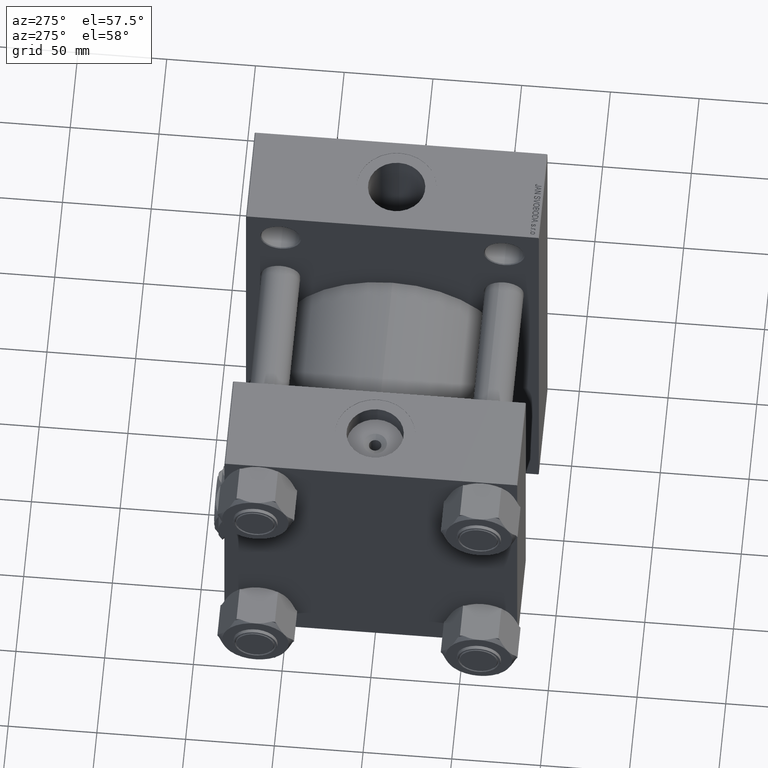
[diagram: clean part render]
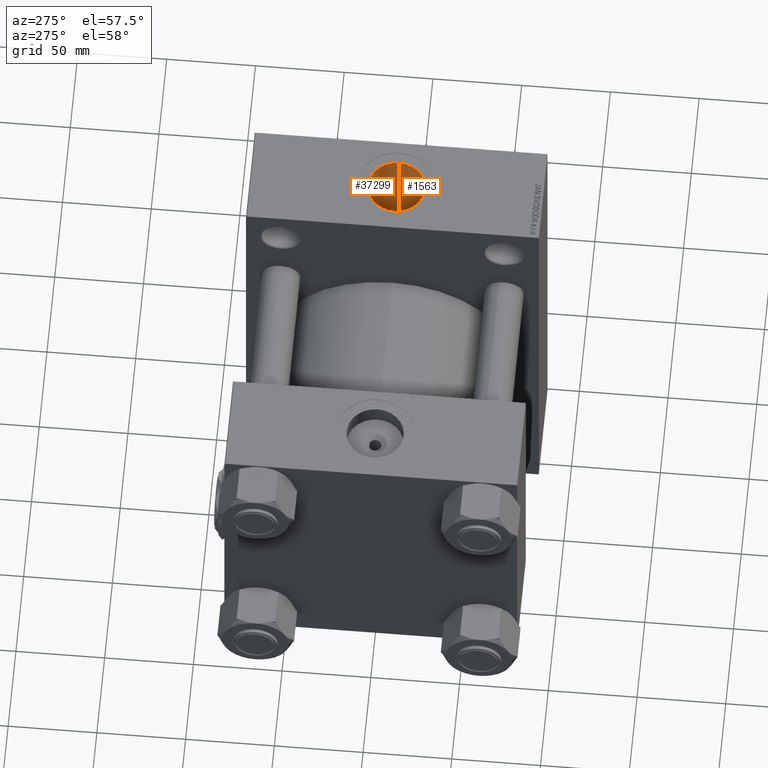
[diagram: same view with one multi-face feature highlighted, each face labeled with its STEP entity id]
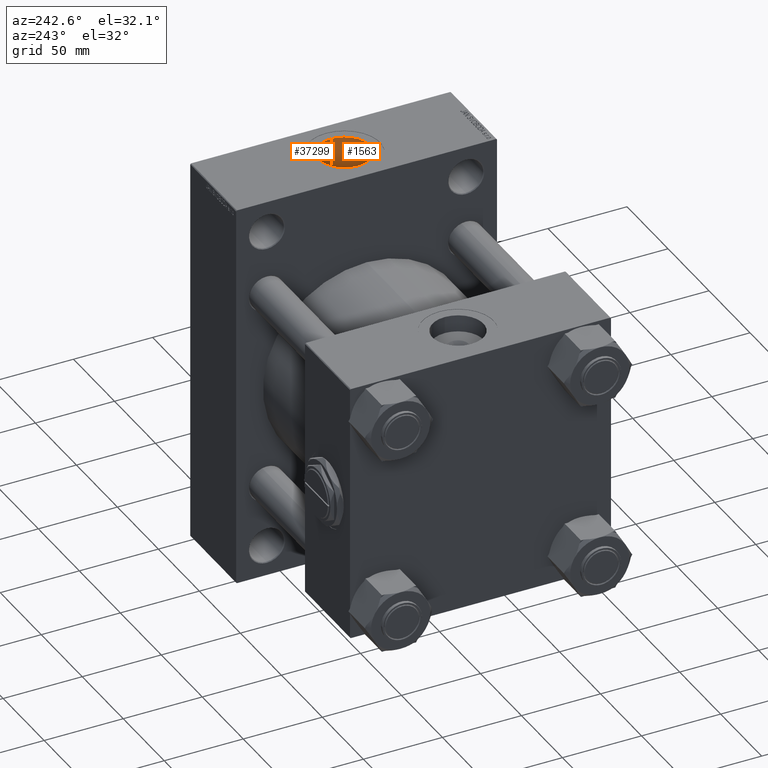
[diagram: same view with one multi-face feature highlighted, each face labeled with its STEP entity id]
A machine part, auxiliary view. The highlighted faces form ONE feature: a constant-radius fillet chain: 2 tangent blend faces with common blend radius 16.12 mm. The faces share edges in the B-rep.
A second angle (auxiliary view) of the same feature is appended — it is thin or edge-on in the first view.
Their STEP definitions:
[1] entity #1563 (Cylinder):
#761 = EDGE_LOOP ( 'NONE', ( #29868, #43348, #39371, #3784, #31301, #19017 ) ) ;
#1563 = ADVANCED_FACE ( 'NONE', ( #13410 ), #2426, .F. ) ;
#2329 = CARTESIAN_POINT ( 'NONE',  ( 150.3349467463776250, -3.818578580884662177, 47.84905752641297028 ) ) ;
#2426 = CYLINDRICAL_SURFACE ( 'NONE', #10664, 16.11999999999999389 ) ;
#2455 = CARTESIAN_POINT ( 'NONE',  ( 182.1200000000000614, 1.233548639465218517E-14, 62.75000000000001421 ) ) ;
#2706 = CARTESIAN_POINT ( 'NONE',  ( 176.6931090995301190, -12.08387147005236706, 61.57756697528341050 ) ) ;
#2712 = VERTEX_POINT ( 'NONE', #26956 ) ;
#3342 = EDGE_CURVE ( 'NONE', #42902, #31832, #7388, .T. ) ;
#3784 = ORIENTED_EDGE ( 'NONE', *, *, #12397, .F. ) ;
#3836 = VERTEX_POINT ( 'NONE', #26114 ) ;
#6325 = CARTESIAN_POINT ( 'NONE',  ( 152.6971890334757518, -9.210764258183600006, 47.12401255044404991 ) ) ;
#6421 = DIRECTION ( 'NONE',  ( 0.000000000000000000, 0.000000000000000000, -1.000000000000000000 ) ) ;
#6701 = CARTESIAN_POINT ( 'NONE',  ( 174.3751098904970149, -13.79261230007028161, 61.21644931185165461 ) ) ;
#6823 = CARTESIAN_POINT ( 'NONE',  ( 153.5284591875429214, -10.30646944873276638, 46.89142198111669302 ) ) ;
#7388 = B_SPLINE_CURVE_WITH_KNOTS ( 'NONE', 3,
 ( #2455, #48254, #25484, #40252, #37222, #40733, #25247, #13440, #36485, #36964, #13693, #2706, #17465, #17961, #6701, #18201 ),
 .UNSPECIFIED., .F., .F.,
 ( 4, 2, 2, 2, 2, 2, 2, 4 ),
 ( 0.01725131248101617956, 0.02156005667283688448, 0.02371442876874723521, 0.02586880086465758941, 0.02802317296056794360, 0.03017754505647830127, 0.03233191715238865893, 0.03448628924829900966 ),
 .UNSPECIFIED. ) ;
#8806 = CARTESIAN_POINT ( 'NONE',  ( 172.5268965211029695, -14.80427523608108231, 45.66526315275407910 ) ) ;
#9821 = CARTESIAN_POINT ( 'NONE',  ( 164.3089344729780805, -16.04636164410583987, 45.23854938111714574 ) ) ;
#10556 = CARTESIAN_POINT ( 'NONE',  ( 150.0618984349625578, -2.440288002312380744, 47.93919931072274920 ) ) ;
#10664 = AXIS2_PLACEMENT_3D ( 'NONE', #36937, #6421, #18411 ) ;
#12397 = EDGE_CURVE ( 'NONE', #49374, #31832, #36296, .T. ) ;
#12456 = VERTEX_POINT ( 'NONE', #25302 ) ;
#13054 = CARTESIAN_POINT ( 'NONE',  ( 160.2496555027516081, -15.07580435985670242, 45.57198320915298950 ) ) ;
#13410 = FACE_OUTER_BOUND ( 'NONE', #761, .T. ) ;
#13440 = CARTESIAN_POINT ( 'NONE',  ( 179.4978733992990954, -8.841743442041519074, 62.12707439263353137 ) ) ;
#13693 = CARTESIAN_POINT ( 'NONE',  ( 177.7179939142464491, -11.09284231136825660, 61.76378836952420670 ) ) ;
#14059 = CARTESIAN_POINT ( 'NONE',  ( 154.9799852017249862, -11.78519132341143738, 46.53349822920894496 ) ) ;
#14792 = CARTESIAN_POINT ( 'NONE',  ( 173.7400000000000091, -14.14025459459623590, 61.13604256083313260 ) ) ;
#16823 = CARTESIAN_POINT ( 'NONE',  ( 160.9058140718719585, -15.30969356532286341, 45.49344936859772304 ) ) ;
#17465 = CARTESIAN_POINT ( 'NONE',  ( 176.1469099290165161, -12.54658168107651051, 61.48445192794335412 ) ) ;
#17578 = CARTESIAN_POINT ( 'NONE',  ( 150.6039488246599376, -4.827023044815289765, 47.76144096132668437 ) ) ;
#17718 = DIRECTION ( 'NONE',  ( 0.000000000000000000, 0.000000000000000000, -1.000000000000000000 ) ) ;
#17826 = CARTESIAN_POINT ( 'NONE',  ( 150.2558561993275248, -3.478434657325286672, 47.87504062993428988 ) ) ;
#17961 = CARTESIAN_POINT ( 'NONE',  ( 174.9837016728169203, -13.40408882547880509, 61.30322131436631139 ) ) ;
#18201 = CARTESIAN_POINT ( 'NONE',  ( 173.7400000000000091, -14.14025459459623590, 61.13604256083313260 ) ) ;
#18311 = CARTESIAN_POINT ( 'NONE',  ( 149.9250024996750028, -1.394131805555121062, 47.98482823620874171 ) ) ;
#18411 = DIRECTION ( 'NONE',  ( -1.000000000000000000, 0.000000000000000000, 0.000000000000000000 ) ) ;
#19017 = ORIENTED_EDGE ( 'NONE', *, *, #48539, .F. ) ;
#20581 = CARTESIAN_POINT ( 'NONE',  ( 162.2424279243942351, -15.69133835691058998, 45.36322908574961588 ) ) ;
#22088 = CARTESIAN_POINT ( 'NONE',  ( 151.2202184905598585, -6.444565633109859526, 47.56650002770068397 ) ) ;
#22326 = CARTESIAN_POINT ( 'NONE',  ( 151.6675240934841895, -7.386171131807184764, 47.42936155241066842 ) ) ;
#23311 = AXIS2_PLACEMENT_3D ( 'NONE', #44679, #33888, #37148 ) ;
#23932 = EDGE_CURVE ( 'NONE', #49374, #3836, #26320, .T. ) ;
#24090 = CARTESIAN_POINT ( 'NONE',  ( 168.5014073238729679, -15.98700906778727315, 45.26084044427021524 ) ) ;
#24758 = CARTESIAN_POINT ( 'NONE',  ( 149.8799999999999955, -3.116194171391063807E-14, 146.2999999999999829 ) ) ;
#25052 = DIRECTION ( 'NONE',  ( -0.000000000000000000, -0.000000000000000000, 1.000000000000000000 ) ) ;
#25111 = CARTESIAN_POINT ( 'NONE',  ( 162.9228835794722556, -15.83909022528225741, 45.31153598099023583 ) ) ;
#25247 = CARTESIAN_POINT ( 'NONE',  ( 180.2299047929868152, -7.607813285098392164, 62.29021573812201495 ) ) ;
#25302 = CARTESIAN_POINT ( 'NONE',  ( 149.8799999999999955, -3.116194171391063807E-14, 123.2999999999999972 ) ) ;
#25484 = CARTESIAN_POINT ( 'NONE',  ( 181.9288187961556389, -2.869591190657372781, 62.70005304133129442 ) ) ;
#25844 = CARTESIAN_POINT ( 'NONE',  ( 155.5016505005564795, -12.25223426699439422, 46.41205426771291798 ) ) ;
#26114 = CARTESIAN_POINT ( 'NONE',  ( 149.8799999999999955, 5.879090918007074346E-15, 48.00000000000000711 ) ) ;
#26320 = B_SPLINE_CURVE_WITH_KNOTS ( 'NONE', 3,
 ( #43114, #8806, #39609, #24090, #28855, #44130, #9821, #25111, #20581, #16823, #13054, #28361, #29111, #49110, #48375, #25844, #14059, #6823, #6325, #40610, #22326, #40843, #22088, #44860, #17578, #2329, #17826, #26336, #10556, #18311, #48857, #41344 ),
 .UNSPECIFIED., .F., .F.,
 ( 4, 2, 2, 2, 2, 2, 2, 2, 2, 2, 2, 2, 2, 2, 2, 4 ),
 ( 0.01730946740486644791, 0.02149205991460770640, 0.02567465242434896489, 0.02776594867921955076, 0.02985724493409013663, 0.03194854118896071904, 0.03403983744383130838, 0.03613113369870189079, 0.03822242995357248013, 0.04240502246331364494, 0.04345067059074896043, 0.04449631871818426898, 0.04658761497305493465, 0.04763326310049026402, 0.04867891122792559339, 0.05077020748279625212 ),
 .UNSPECIFIED. ) ;
#26336 = CARTESIAN_POINT ( 'NONE',  ( 150.1193842262599389, -2.789912960716225410, 47.92009399672301129 ) ) ;
#26956 = CARTESIAN_POINT ( 'NONE',  ( 182.1199999999999761, -2.918781107368510798E-14, 123.2999999999999972 ) ) ;
#28361 = CARTESIAN_POINT ( 'NONE',  ( 158.9619646494107883, -14.51938006037327611, 45.75230194618004731 ) ) ;
#28827 = CARTESIAN_POINT ( 'NONE',  ( 182.1200000000000614, 1.233548639465218517E-14, 62.75000000000001421 ) ) ;
#28855 = CARTESIAN_POINT ( 'NONE',  ( 167.1172731320739331, -16.14205161217259032, 45.20436757325734334 ) ) ;
#29111 = CARTESIAN_POINT ( 'NONE',  ( 158.3439918909934079, -14.20269203266186686, 45.85214996005703370 ) ) ;
#29868 = ORIENTED_EDGE ( 'NONE', *, *, #31395, .F. ) ;
#29941 = VECTOR ( 'NONE', #17718, 1000.000000000000000 ) ;
#31301 = ORIENTED_EDGE ( 'NONE', *, *, #23932, .T. ) ;
#31304 = CIRCLE ( 'NONE', #23311, 16.11999999999999389 ) ;
#31395 = EDGE_CURVE ( 'NONE', #2712, #12456, #31304, .T. ) ;
#31643 = VECTOR ( 'NONE', #25052, 1000.000000000000000 ) ;
#31832 = VERTEX_POINT ( 'NONE', #14792 ) ;
#32498 = CARTESIAN_POINT ( 'NONE',  ( 182.1199999999999761, -2.918781107368510798E-14, 146.2999999999999829 ) ) ;
#32762 = DIRECTION ( 'NONE',  ( 0.000000000000000000, 0.000000000000000000, -1.000000000000000000 ) ) ;
#32914 = CARTESIAN_POINT ( 'NONE',  ( 173.7400000000000091, -14.14025459459623590, 45.86995966861100982 ) ) ;
#33888 = DIRECTION ( 'NONE',  ( -0.000000000000000000, -0.000000000000000000, -1.000000000000000000 ) ) ;
#36296 = LINE ( 'NONE', #37276, #31643 ) ;
#36485 = CARTESIAN_POINT ( 'NONE',  ( 179.0858583400532495, -9.440766866681590486, 62.03836196695988292 ) ) ;
#36937 = CARTESIAN_POINT ( 'NONE',  ( 165.9999999999999716, -3.116194171391063807E-14, 146.2999999999999829 ) ) ;
#36964 = CARTESIAN_POINT ( 'NONE',  ( 178.1966697685148233, -10.56451674639078853, 61.85691085472824824 ) ) ;
#37148 = DIRECTION ( 'NONE',  ( 1.000000000000000000, 0.000000000000000000, 0.000000000000000000 ) ) ;
#37222 = CARTESIAN_POINT ( 'NONE',  ( 181.1137499233100527, -5.651720081446736543, 62.49847482008421906 ) ) ;
#37276 = CARTESIAN_POINT ( 'NONE',  ( 173.7400000000000091, -14.14025459459623590, 146.2999999999999829 ) ) ;
#39371 = ORIENTED_EDGE ( 'NONE', *, *, #3342, .T. ) ;
#39609 = CARTESIAN_POINT ( 'NONE',  ( 171.2382520628491704, -15.31019963486740032, 45.49424055631333630 ) ) ;
#40001 = LINE ( 'NONE', #32498, #29941 ) ;
#40252 = CARTESIAN_POINT ( 'NONE',  ( 181.3520876524982555, -4.969372210910893095, 62.55685426934635984 ) ) ;
#40610 = CARTESIAN_POINT ( 'NONE',  ( 151.8313680696431049, -7.695846547749233046, 47.38004186343273716 ) ) ;
#40733 = CARTESIAN_POINT ( 'NONE',  ( 180.5529646384133002, -6.969834779711515438, 62.36523629281986558 ) ) ;
#40843 = CARTESIAN_POINT ( 'NONE',  ( 151.3622568011778071, -6.761054920981769634, 47.52249990912831379 ) ) ;
#41069 = VECTOR ( 'NONE', #32762, 1000.000000000000000 ) ;
#41344 = CARTESIAN_POINT ( 'NONE',  ( 149.8799999999999955, 5.879090918007074346E-15, 48.00000000000000711 ) ) ;
#42902 = VERTEX_POINT ( 'NONE', #28827 ) ;
#43114 = CARTESIAN_POINT ( 'NONE',  ( 173.7400000000000091, -14.14025459459623590, 45.86995966861100982 ) ) ;
#43348 = ORIENTED_EDGE ( 'NONE', *, *, #45505, .T. ) ;
#44130 = CARTESIAN_POINT ( 'NONE',  ( 165.0177403313186630, -16.10526306269807861, 45.21748191980999820 ) ) ;
#44679 = CARTESIAN_POINT ( 'NONE',  ( 165.9999999999999716, -3.116194171391063807E-14, 123.2999999999999972 ) ) ;
#44860 = CARTESIAN_POINT ( 'NONE',  ( 150.8254561955876341, -5.483383170357729597, 47.69014482412352862 ) ) ;
#45505 = EDGE_CURVE ( 'NONE', #2712, #42902, #40001, .T. ) ;
#48254 = CARTESIAN_POINT ( 'NONE',  ( 182.1200000000000045, -1.446404479253755815, 62.74999999999998579 ) ) ;
#48375 = CARTESIAN_POINT ( 'NONE',  ( 156.5894716896488603, -13.10627878788852030, 46.17814940225067488 ) ) ;
#48530 = LINE ( 'NONE', #24758, #41069 ) ;
#48539 = EDGE_CURVE ( 'NONE', #12456, #3836, #48530, .T. ) ;
#48857 = CARTESIAN_POINT ( 'NONE',  ( 149.8799999999999955, -0.6969441322252637461, 48.00000000000000711 ) ) ;
#49110 = CARTESIAN_POINT ( 'NONE',  ( 157.1578453829135356, -13.49619290271693650, 46.06505067908694429 ) ) ;
#49374 = VERTEX_POINT ( 'NONE', #32914 ) ;
[2] entity #37299 (Cylinder):
#1678 = CARTESIAN_POINT ( 'NONE',  ( 150.0614714914799777, 2.437406301587406343, 47.93934136742533525 ) ) ;
#2432 = CARTESIAN_POINT ( 'NONE',  ( 151.8344616837607362, 7.701502031907020651, 47.37911783819649969 ) ) ;
#2683 = CARTESIAN_POINT ( 'NONE',  ( 164.2980790581978283, 16.04512757477887064, 45.23898732334281902 ) ) ;
#2712 = VERTEX_POINT ( 'NONE', #26956 ) ;
#2865 = CARTESIAN_POINT ( 'NONE',  ( 173.7400000000000091, 14.14025459459617373, 61.13604256083314681 ) ) ;
#2926 = CARTESIAN_POINT ( 'NONE',  ( 173.7400000000000375, 14.14025459459616840, 45.86995966861103113 ) ) ;
#3230 = CARTESIAN_POINT ( 'NONE',  ( 181.1022244331990407, 5.648645018184515365, 62.49617607795300955 ) ) ;
#3836 = VERTEX_POINT ( 'NONE', #26114 ) ;
#4927 = CARTESIAN_POINT ( 'NONE',  ( 150.6039412762756626, 4.827166512395204556, 47.76144253405185225 ) ) ;
#5144 = EDGE_CURVE ( 'NONE', #3836, #39595, #38293, .T. ) ;
#5986 = ORIENTED_EDGE ( 'NONE', *, *, #6519, .T. ) ;
#6428 = CARTESIAN_POINT ( 'NONE',  ( 165.0067877690202067, 16.10465261015763616, 45.21769947908528309 ) ) ;
#6519 = EDGE_CURVE ( 'NONE', #49061, #42902, #25134, .T. ) ;
#8964 = CARTESIAN_POINT ( 'NONE',  ( 165.9999999999999716, -3.116194171391063807E-14, 123.2999999999999972 ) ) ;
#9219 = EDGE_CURVE ( 'NONE', #12456, #2712, #25970, .T. ) ;
#10417 = CARTESIAN_POINT ( 'NONE',  ( 154.9967153907675197, 11.78568579095606239, 46.53122192616324071 ) ) ;
#10489 = CARTESIAN_POINT ( 'NONE',  ( 173.7400000000000091, 14.14025459459617373, 61.13604256083314681 ) ) ;
#10741 = AXIS2_PLACEMENT_3D ( 'NONE', #16021, #27812, #39563 ) ;
#11461 = CARTESIAN_POINT ( 'NONE',  ( 182.0218531635884460, 1.812320719047275652, 62.72484100374321514 ) ) ;
#12456 = VERTEX_POINT ( 'NONE', #25302 ) ;
#13170 = CARTESIAN_POINT ( 'NONE',  ( 150.8258789888302829, 5.484731270650820001, 47.69000706003646428 ) ) ;
#13670 = CARTESIAN_POINT ( 'NONE',  ( 149.8800000000000523, 0.6966821524703092905, 48.00000000000002132 ) ) ;
#14725 = CARTESIAN_POINT ( 'NONE',  ( 182.1200000000000614, 1.233548639465218517E-14, 62.75000000000001421 ) ) ;
#15080 = CARTESIAN_POINT ( 'NONE',  ( 160.2490641726749914, 15.07552035386557243, 45.57207364129578053 ) ) ;
#15205 = CARTESIAN_POINT ( 'NONE',  ( 178.1940662405432647, 10.56757189381324835, 61.85639358677066468 ) ) ;
#15319 = CARTESIAN_POINT ( 'NONE',  ( 172.5045609595395035, 14.76570521449223605, 45.67323470544516795 ) ) ;
#16021 = CARTESIAN_POINT ( 'NONE',  ( 165.9999999999999716, -3.116194171391063807E-14, 146.2999999999999829 ) ) ;
#17681 = CARTESIAN_POINT ( 'NONE',  ( 153.5300811663024376, 10.30902770126830781, 46.89092089420522314 ) ) ;
#17718 = DIRECTION ( 'NONE',  ( 0.000000000000000000, 0.000000000000000000, -1.000000000000000000 ) ) ;
#17939 = CARTESIAN_POINT ( 'NONE',  ( 167.1105234336490355, 16.14276192669088417, 45.20411446845385939 ) ) ;
#18019 = ORIENTED_EDGE ( 'NONE', *, *, #45505, .F. ) ;
#18247 = CARTESIAN_POINT ( 'NONE',  ( 180.9712389402107249, 5.987294288113911733, 62.46460637718026732 ) ) ;
#18522 = DIRECTION ( 'NONE',  ( 0.000000000000000000, 0.000000000000000000, -1.000000000000000000 ) ) ;
#18974 = CARTESIAN_POINT ( 'NONE',  ( 175.0114902370778793, 13.44427459160925054, 61.29701690628886013 ) ) ;
#20499 = EDGE_CURVE ( 'NONE', #49061, #39595, #29564, .T. ) ;
#20690 = CARTESIAN_POINT ( 'NONE',  ( 149.8799999999999955, 5.879090918007074346E-15, 48.00000000000000711 ) ) ;
#21255 = DIRECTION ( 'NONE',  ( -0.000000000000000000, -0.000000000000000000, -1.000000000000000000 ) ) ;
#21459 = CARTESIAN_POINT ( 'NONE',  ( 168.4952049674536738, 15.98782192495555954, 45.26054414299466089 ) ) ;
#21699 = CARTESIAN_POINT ( 'NONE',  ( 151.3640296295077974, 6.764931955851407608, 47.52195258659887855 ) ) ;
#21953 = CARTESIAN_POINT ( 'NONE',  ( 171.2123721950988511, 15.26979174243738591, 45.50718491713758596 ) ) ;
#22257 = CARTESIAN_POINT ( 'NONE',  ( 182.1077163658963229, 0.7267219843898016229, 62.74684105231320785 ) ) ;
#23101 = CARTESIAN_POINT ( 'NONE',  ( 173.1316445098233316, 14.47325224060510429, 45.76730704959881990 ) ) ;
#24250 = DIRECTION ( 'NONE',  ( 1.000000000000000000, 0.000000000000000000, 0.000000000000000000 ) ) ;
#24758 = CARTESIAN_POINT ( 'NONE',  ( 149.8799999999999955, -3.116194171391063807E-14, 146.2999999999999829 ) ) ;
#25134 = B_SPLINE_CURVE_WITH_KNOTS ( 'NONE', 3,
 ( #10489, #18974, #49515, #25772, #15205, #30502, #33271, #26027, #37265, #18247, #3230, #45040, #48788, #41273, #45765, #11461, #41028, #22257, #33752, #14725 ),
 .UNSPECIFIED., .F., .F.,
 ( 4, 2, 2, 2, 2, 2, 2, 2, 2, 4 ),
 ( 0.000000000000000000, 0.004312828120254117749, 0.006469242180381145832, 0.008625656240508174782, 0.01078207030063520200, 0.01186027733069869999, 0.01293848436076219972, 0.01509489842088919571, 0.01617310545095268851, 0.01725131248101617956 ),
 .UNSPECIFIED. ) ;
#25302 = CARTESIAN_POINT ( 'NONE',  ( 149.8799999999999955, -3.116194171391063807E-14, 123.2999999999999972 ) ) ;
#25704 = CARTESIAN_POINT ( 'NONE',  ( 152.6987612004010941, 9.212534709677337119, 47.12358491237535674 ) ) ;
#25772 = CARTESIAN_POINT ( 'NONE',  ( 177.7057295386113935, 11.10599076379968508, 61.76143863433413372 ) ) ;
#25970 = CIRCLE ( 'NONE', #46700, 16.11999999999999389 ) ;
#26027 = CARTESIAN_POINT ( 'NONE',  ( 180.2195483388237278, 7.626863845352516158, 62.28785541091767186 ) ) ;
#26114 = CARTESIAN_POINT ( 'NONE',  ( 149.8799999999999955, 5.879090918007074346E-15, 48.00000000000000711 ) ) ;
#26872 = CARTESIAN_POINT ( 'NONE',  ( 151.6701776939642343, 7.391354796697718221, 47.42855844614703642 ) ) ;
#26956 = CARTESIAN_POINT ( 'NONE',  ( 182.1199999999999761, -2.918781107368510798E-14, 123.2999999999999972 ) ) ;
#27459 = ORIENTED_EDGE ( 'NONE', *, *, #5144, .T. ) ;
#27812 = DIRECTION ( 'NONE',  ( 0.000000000000000000, 0.000000000000000000, -1.000000000000000000 ) ) ;
#28213 = CARTESIAN_POINT ( 'NONE',  ( 150.1188171930568558, 2.786749855319910818, 47.92028185637968107 ) ) ;
#28827 = CARTESIAN_POINT ( 'NONE',  ( 182.1200000000000614, 1.233548639465218517E-14, 62.75000000000001421 ) ) ;
#29069 = ORIENTED_EDGE ( 'NONE', *, *, #9219, .F. ) ;
#29223 = CARTESIAN_POINT ( 'NONE',  ( 158.9636608794598374, 14.52014148039138419, 45.75205679854095564 ) ) ;
#29564 = LINE ( 'NONE', #48584, #43005 ) ;
#29941 = VECTOR ( 'NONE', #17718, 1000.000000000000000 ) ;
#30502 = CARTESIAN_POINT ( 'NONE',  ( 179.0844003929186101, 9.442843510694224562, 62.03805049906818425 ) ) ;
#30614 = CARTESIAN_POINT ( 'NONE',  ( 151.2216128799661590, 6.447800440742311956, 47.56606597250565471 ) ) ;
#32498 = CARTESIAN_POINT ( 'NONE',  ( 182.1199999999999761, -2.918781107368510798E-14, 146.2999999999999829 ) ) ;
#32762 = DIRECTION ( 'NONE',  ( 0.000000000000000000, 0.000000000000000000, -1.000000000000000000 ) ) ;
#32954 = CARTESIAN_POINT ( 'NONE',  ( 154.7441410745596784, 11.54469890651621888, 46.59167934632901620 ) ) ;
#33271 = CARTESIAN_POINT ( 'NONE',  ( 179.4892412334476148, 8.854658549122547129, 62.12520427157874536 ) ) ;
#33752 = CARTESIAN_POINT ( 'NONE',  ( 182.1199999999999477, 0.3619438538048549980, 62.75000000000000000 ) ) ;
#34352 = CARTESIAN_POINT ( 'NONE',  ( 158.3439023535990486, 14.20260787286860094, 45.85217266780416878 ) ) ;
#35049 = FACE_OUTER_BOUND ( 'NONE', #47710, .T. ) ;
#35946 = CARTESIAN_POINT ( 'NONE',  ( 149.9249704188250973, 1.393120938056549463, 47.98483942807536096 ) ) ;
#36704 = CARTESIAN_POINT ( 'NONE',  ( 155.7785938246813657, 12.46980303506202858, 46.35248263294047888 ) ) ;
#36943 = CARTESIAN_POINT ( 'NONE',  ( 162.2373763381498861, 15.69005807395346785, 45.36367058893583248 ) ) ;
#37265 = CARTESIAN_POINT ( 'NONE',  ( 180.5450239783026234, 6.987262028868567398, 62.36336777575549917 ) ) ;
#37299 = ADVANCED_FACE ( 'NONE', ( #35049 ), #42825, .F. ) ;
#38293 = B_SPLINE_CURVE_WITH_KNOTS ( 'NONE', 3,
 ( #20690, #13670, #35946, #1678, #28213, #43485, #47479, #4927, #13170, #30614, #21699, #26872, #2432, #25704, #17681, #32954, #10417, #40715, #36704, #38343, #49393, #34352, #29223, #15080, #44244, #36943, #42119, #2683, #6428, #17939, #21459, #45634, #21953, #15319, #23101, #2926 ),
 .UNSPECIFIED., .F., .F.,
 ( 4, 2, 2, 2, 2, 2, 2, 2, 2, 2, 2, 2, 2, 2, 2, 2, 2, 4 ),
 ( 0.05077020748279625212, 0.05286071762403861396, 0.05390597269465979141, 0.05495122776528096886, 0.05704173790652335152, 0.05808699297714454285, 0.05913224804776573418, 0.06331326833025055500, 0.06435852340087175327, 0.06540377847149295154, 0.06749428861273540359, 0.06958479875397786951, 0.07167530889522033544, 0.07376581903646280136, 0.07585632917770526729, 0.08003734946019026852, 0.08212785960143273445, 0.08421836974267520037 ),
 .UNSPECIFIED. ) ;
#38343 = CARTESIAN_POINT ( 'NONE',  ( 156.5918825648012955, 13.10788518647637346, 46.17767731078850346 ) ) ;
#39563 = DIRECTION ( 'NONE',  ( -1.000000000000000000, 0.000000000000000000, 0.000000000000000000 ) ) ;
#39595 = VERTEX_POINT ( 'NONE', #47371 ) ;
#40001 = LINE ( 'NONE', #32498, #29941 ) ;
#40715 = CARTESIAN_POINT ( 'NONE',  ( 155.5137491360880517, 12.24798777652973669, 46.41167739837656825 ) ) ;
#41028 = CARTESIAN_POINT ( 'NONE',  ( 182.0585561406243471, 1.452386327798592669, 62.73423914292479253 ) ) ;
#41069 = VECTOR ( 'NONE', #32762, 1000.000000000000000 ) ;
#41273 = CARTESIAN_POINT ( 'NONE',  ( 181.7323002327978259, 3.586673343346733933, 62.65125153309103467 ) ) ;
#42119 = CARTESIAN_POINT ( 'NONE',  ( 162.9160592526729090, 15.83767543707250880, 45.31203073889371069 ) ) ;
#42825 = CYLINDRICAL_SURFACE ( 'NONE', #10741, 16.11999999999999389 ) ;
#42902 = VERTEX_POINT ( 'NONE', #28827 ) ;
#43005 = VECTOR ( 'NONE', #18522, 1000.000000000000000 ) ;
#43485 = CARTESIAN_POINT ( 'NONE',  ( 150.2553793376022782, 3.476328853959464116, 47.87519739541681929 ) ) ;
#44244 = CARTESIAN_POINT ( 'NONE',  ( 160.9038791272143385, 15.30897812509721234, 45.49368879779712671 ) ) ;
#45040 = CARTESIAN_POINT ( 'NONE',  ( 181.3396580496003594, 4.967822892727451922, 62.55397629739029242 ) ) ;
#45505 = EDGE_CURVE ( 'NONE', #2712, #42902, #40001, .T. ) ;
#45634 = CARTESIAN_POINT ( 'NONE',  ( 170.5455056036847736, 15.48187014673268713, 45.43504730123787283 ) ) ;
#45765 = CARTESIAN_POINT ( 'NONE',  ( 181.8763463745155775, 2.883672403985895194, 62.68777930985194757 ) ) ;
#46700 = AXIS2_PLACEMENT_3D ( 'NONE', #8964, #21255, #24250 ) ;
#47371 = CARTESIAN_POINT ( 'NONE',  ( 173.7400000000000375, 14.14025459459616840, 45.86995966861103113 ) ) ;
#47479 = CARTESIAN_POINT ( 'NONE',  ( 150.3345544224279138, 3.817021750896531618, 47.84918575400384810 ) ) ;
#47710 = EDGE_LOOP ( 'NONE', ( #18019, #29069, #48261, #27459, #48477, #5986 ) ) ;
#48261 = ORIENTED_EDGE ( 'NONE', *, *, #48539, .T. ) ;
#48477 = ORIENTED_EDGE ( 'NONE', *, *, #20499, .F. ) ;
#48530 = LINE ( 'NONE', #24758, #41069 ) ;
#48539 = EDGE_CURVE ( 'NONE', #12456, #3836, #48530, .T. ) ;
#48584 = CARTESIAN_POINT ( 'NONE',  ( 173.7400000000000091, 14.14025459459617373, 146.2999999999999829 ) ) ;
#48788 = CARTESIAN_POINT ( 'NONE',  ( 181.4465573356519883, 4.624612475451906235, 62.58031416136807223 ) ) ;
#49061 = VERTEX_POINT ( 'NONE', #2865 ) ;
#49393 = CARTESIAN_POINT ( 'NONE',  ( 157.1589983863507030, 13.49691046236680947, 46.06483709641717184 ) ) ;
#49515 = CARTESIAN_POINT ( 'NONE',  ( 176.1594946012741900, 12.59722227134139949, 61.48085737170002574 ) ) ;